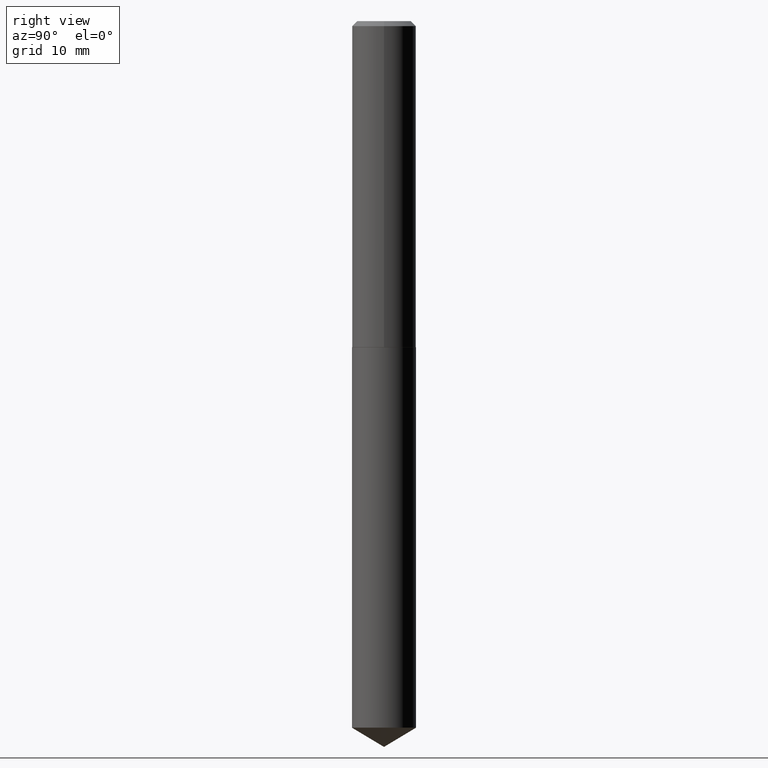
[diagram: clean part render]
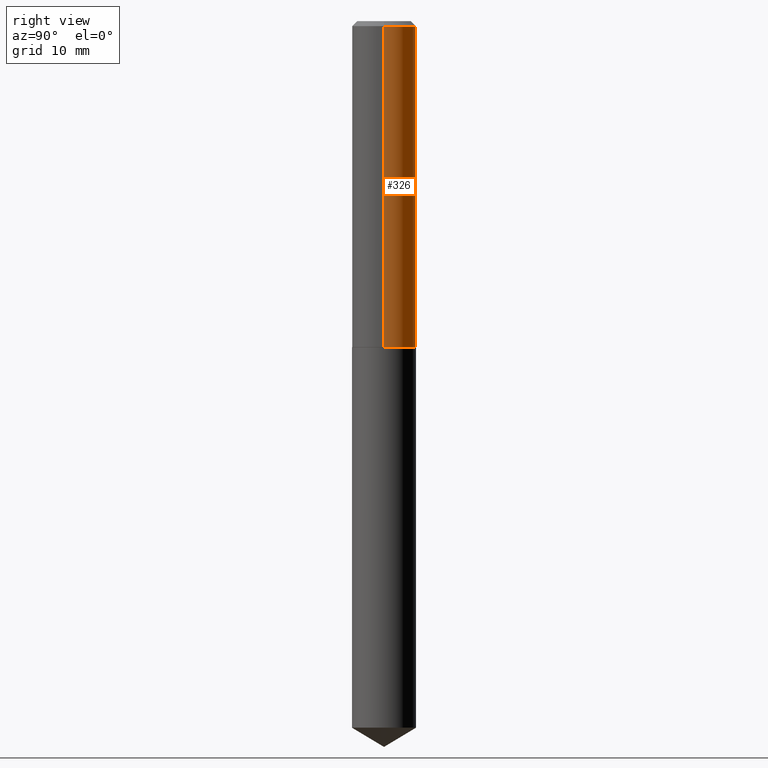
[diagram: same view with one face highlighted and labeled with its STEP entity id]
A machine part, right view. The second image highlights one B-rep face of the part: STEP entity #326.
In plain terms, the highlighted cylindrical surface (edge-blend (fillet) strip) has radius 5.0419 mm, axis along (-0, 0, 1).
Its self-contained STEP definition (entity closure, byte-faithful):
#3 = CARTESIAN_POINT ( 'NONE',  ( -0.1985000000000000098, -2.173141828671334310E-15, -0.03125000000000020817 ) ) ;
#10 = FACE_OUTER_BOUND ( 'NONE', #387, .T. ) ;
#13 = ORIENTED_EDGE ( 'NONE', *, *, #160, .F. ) ;
#17 = CARTESIAN_POINT ( 'NONE',  ( 0.1985000000000001485, -1.386118091520724912E-15, 9.679210899954938883E-30 ) ) ;
#31 = ORIENTED_EDGE ( 'NONE', *, *, #246, .T. ) ;
#34 = LINE ( 'NONE', #388, #225 ) ;
#47 = ORIENTED_EDGE ( 'NONE', *, *, #215, .T. ) ;
#76 = CYLINDRICAL_SURFACE ( 'NONE', #304, 0.1985000000000001485 ) ;
#83 = CIRCLE ( 'NONE', #303, 0.1985000000000002873 ) ;
#86 = EDGE_CURVE ( 'NONE', #389, #295, #287, .T. ) ;
#95 = CARTESIAN_POINT ( 'NONE',  ( -0.1985000000000002873, -5.647602195987619247E-15, -2.021500000000000519 ) ) ;
#106 = AXIS2_PLACEMENT_3D ( 'NONE', #367, #152, #305 ) ;
#124 = VERTEX_POINT ( 'NONE', #95 ) ;
#125 = CARTESIAN_POINT ( 'NONE',  ( 4.943515191703255249E-29, -7.058029526471420552E-15, -2.021500000000000519 ) ) ;
#130 = DIRECTION ( 'NONE',  ( -2.445468806185136877E-29, 3.491481338843145188E-15, 1.000000000000000000 ) ) ;
#135 = ORIENTED_EDGE ( 'NONE', *, *, #86, .F. ) ;
#152 = DIRECTION ( 'NONE',  ( -2.445468806185136597E-29, 3.491481338843145583E-15, 1.000000000000000000 ) ) ;
#156 = DIRECTION ( 'NONE',  ( 1.000000000000000000, -6.982962677686266711E-15, 0.000000000000000000 ) ) ;
#160 = EDGE_CURVE ( 'NONE', #295, #165, #208, .T. ) ;
#165 = VERTEX_POINT ( 'NONE', #3 ) ;
#189 = DIRECTION ( 'NONE',  ( -2.445468806185136597E-29, 3.491481338843145583E-15, 1.000000000000000000 ) ) ;
#203 = CARTESIAN_POINT ( 'NONE',  ( 0.1985000000000000098, -1.495226883359573027E-15, -0.03125000000000020817 ) ) ;
#204 = DIRECTION ( 'NONE',  ( -2.445468806185136597E-29, 3.491481338843145583E-15, 1.000000000000000000 ) ) ;
#208 = CIRCLE ( 'NONE', #106, 0.1985000000000000098 ) ;
#215 = EDGE_CURVE ( 'NONE', #389, #124, #83, .T. ) ;
#225 = VECTOR ( 'NONE', #130, 39.37007874015748143 ) ;
#231 = CARTESIAN_POINT ( 'NONE',  ( 0.000000000000000000, 0.000000000000000000, 0.000000000000000000 ) ) ;
#246 = EDGE_CURVE ( 'NONE', #124, #165, #34, .T. ) ;
#287 = LINE ( 'NONE', #17, #384 ) ;
#295 = VERTEX_POINT ( 'NONE', #203 ) ;
#303 = AXIS2_PLACEMENT_3D ( 'NONE', #125, #189, #156 ) ;
#304 = AXIS2_PLACEMENT_3D ( 'NONE', #231, #204, #376 ) ;
#305 = DIRECTION ( 'NONE',  ( 1.000000000000000000, -6.982962677686265922E-15, 0.000000000000000000 ) ) ;
#326 = ADVANCED_FACE ( 'NONE', ( #10 ), #76, .T. ) ;
#343 = CARTESIAN_POINT ( 'NONE',  ( 0.1985000000000002873, -8.444147617992146450E-15, -2.021500000000000519 ) ) ;
#350 = DIRECTION ( 'NONE',  ( -2.445468806185136877E-29, 3.491481338843145188E-15, 1.000000000000000000 ) ) ;
#367 = CARTESIAN_POINT ( 'NONE',  ( 7.642090019328602662E-31, -1.091087918388490267E-16, -0.03125000000000020817 ) ) ;
#376 = DIRECTION ( 'NONE',  ( 1.000000000000000000, -6.982962677686266711E-15, 4.876176775795935232E-29 ) ) ;
#384 = VECTOR ( 'NONE', #350, 39.37007874015748143 ) ;
#387 = EDGE_LOOP ( 'NONE', ( #47, #31, #13, #135 ) ) ;
#388 = CARTESIAN_POINT ( 'NONE',  ( -0.1985000000000001485, 1.410427330483799924E-15, -9.764086154155995580E-30 ) ) ;
#389 = VERTEX_POINT ( 'NONE', #343 ) ;